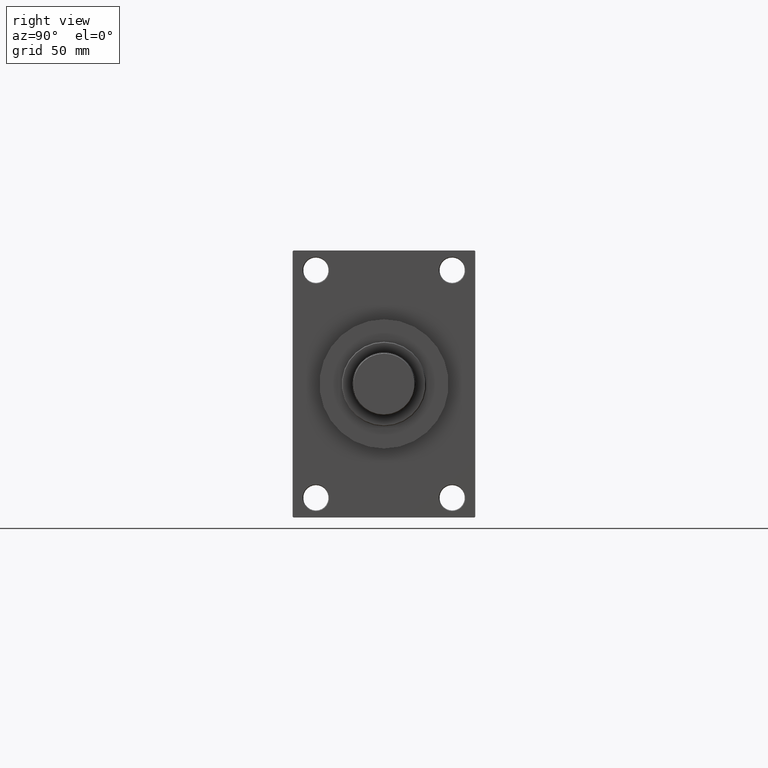
[diagram: clean part render]
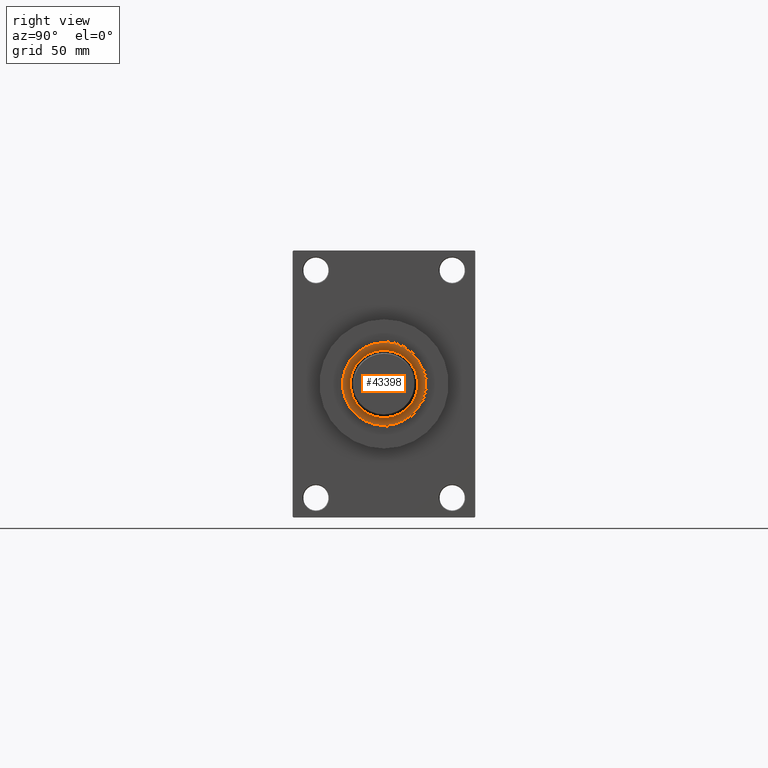
[diagram: same view with one face highlighted and labeled with its STEP entity id]
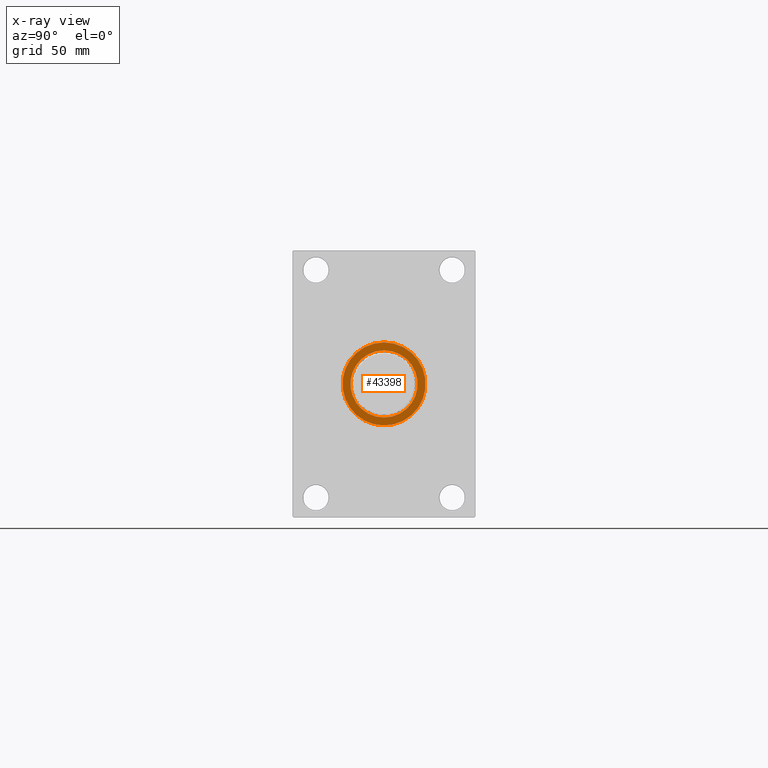
[diagram: x-ray of the same camera — body ghosted, the highlighted face saturated]
A machine part, right view. The second image highlights one B-rep face of the part: STEP entity #43398.
The next image is the same camera in x-ray: the body ghosted, the highlighted face saturated — about 0% of this face is hidden behind the body in this view.
In plain terms, the highlighted planar face has unit normal (1, -0, -0).
Its self-contained STEP definition (entity closure, byte-faithful):
#470 = VERTEX_POINT ( 'NONE', #22083 ) ;
#1888 = AXIS2_PLACEMENT_3D ( 'NONE', #14213, #36307, #25362 ) ;
#1983 = CIRCLE ( 'NONE', #34588, 29.50000000000000000 ) ;
#3042 = VERTEX_POINT ( 'NONE', #30047 ) ;
#3578 = CIRCLE ( 'NONE', #8229, 24.00000000000000355 ) ;
#5323 = DIRECTION ( 'NONE',  ( 0.000000000000000000, 0.000000000000000000, 1.000000000000000000 ) ) ;
#5691 = AXIS2_PLACEMENT_3D ( 'NONE', #21543, #32257, #29554 ) ;
#6531 = DIRECTION ( 'NONE',  ( 1.000000000000000000, 0.000000000000000000, 0.000000000000000000 ) ) ;
#6727 = PLANE ( 'NONE',  #5691 ) ;
#8229 = AXIS2_PLACEMENT_3D ( 'NONE', #13593, #28876, #6531 ) ;
#8853 = CIRCLE ( 'NONE', #36000, 29.50000000000000000 ) ;
#12632 = CARTESIAN_POINT ( 'NONE',  ( 0.000000000000000000, 0.000000000000000000, 52.25999999999999801 ) ) ;
#12969 = CARTESIAN_POINT ( 'NONE',  ( -24.00000000000000355, 2.939152317953648289E-15, 52.25999999999999801 ) ) ;
#13593 = CARTESIAN_POINT ( 'NONE',  ( 0.000000000000000000, 0.000000000000000000, 52.25999999999999801 ) ) ;
#13622 = EDGE_CURVE ( 'NONE', #470, #27275, #8853, .T. ) ;
#14213 = CARTESIAN_POINT ( 'NONE',  ( 0.000000000000000000, 0.000000000000000000, 52.25999999999999801 ) ) ;
#15035 = EDGE_LOOP ( 'NONE', ( #44803, #19136 ) ) ;
#15036 = EDGE_CURVE ( 'NONE', #3042, #41344, #22842, .T. ) ;
#17670 = FACE_BOUND ( 'NONE', #35572, .T. ) ;
#19136 = ORIENTED_EDGE ( 'NONE', *, *, #19853, .T. ) ;
#19853 = EDGE_CURVE ( 'NONE', #27275, #470, #1983, .T. ) ;
#20720 = EDGE_CURVE ( 'NONE', #41344, #3042, #3578, .T. ) ;
#21543 = CARTESIAN_POINT ( 'NONE',  ( 0.000000000000000000, 0.000000000000000000, 52.25999999999999801 ) ) ;
#22083 = CARTESIAN_POINT ( 'NONE',  ( -29.50000000000000000, 0.000000000000000000, 52.25999999999999801 ) ) ;
#22778 = DIRECTION ( 'NONE',  ( 0.000000000000000000, 0.000000000000000000, 1.000000000000000000 ) ) ;
#22842 = CIRCLE ( 'NONE', #1888, 24.00000000000000355 ) ;
#25362 = DIRECTION ( 'NONE',  ( 1.000000000000000000, 0.000000000000000000, 0.000000000000000000 ) ) ;
#25953 = CARTESIAN_POINT ( 'NONE',  ( 0.000000000000000000, 0.000000000000000000, 52.25999999999999801 ) ) ;
#27275 = VERTEX_POINT ( 'NONE', #33146 ) ;
#28876 = DIRECTION ( 'NONE',  ( 0.000000000000000000, 0.000000000000000000, 1.000000000000000000 ) ) ;
#29554 = DIRECTION ( 'NONE',  ( 1.000000000000000000, 0.000000000000000000, -0.000000000000000000 ) ) ;
#30047 = CARTESIAN_POINT ( 'NONE',  ( 24.00000000000000355, 0.000000000000000000, 52.25999999999999801 ) ) ;
#31077 = DIRECTION ( 'NONE',  ( 1.000000000000000000, 0.000000000000000000, 0.000000000000000000 ) ) ;
#32257 = DIRECTION ( 'NONE',  ( 0.000000000000000000, 0.000000000000000000, 1.000000000000000000 ) ) ;
#33146 = CARTESIAN_POINT ( 'NONE',  ( 29.50000000000000000, 3.643324227463375391E-15, 52.25999999999999801 ) ) ;
#34588 = AXIS2_PLACEMENT_3D ( 'NONE', #12632, #5323, #31077 ) ;
#35572 = EDGE_LOOP ( 'NONE', ( #37608, #43648 ) ) ;
#36000 = AXIS2_PLACEMENT_3D ( 'NONE', #25953, #22778, #40786 ) ;
#36307 = DIRECTION ( 'NONE',  ( 0.000000000000000000, 0.000000000000000000, 1.000000000000000000 ) ) ;
#37608 = ORIENTED_EDGE ( 'NONE', *, *, #15036, .F. ) ;
#40508 = FACE_OUTER_BOUND ( 'NONE', #15035, .T. ) ;
#40786 = DIRECTION ( 'NONE',  ( 1.000000000000000000, 0.000000000000000000, 0.000000000000000000 ) ) ;
#41344 = VERTEX_POINT ( 'NONE', #12969 ) ;
#43398 = ADVANCED_FACE ( 'NONE', ( #17670, #40508 ), #6727, .T. ) ;
#43648 = ORIENTED_EDGE ( 'NONE', *, *, #20720, .F. ) ;
#44803 = ORIENTED_EDGE ( 'NONE', *, *, #13622, .T. ) ;